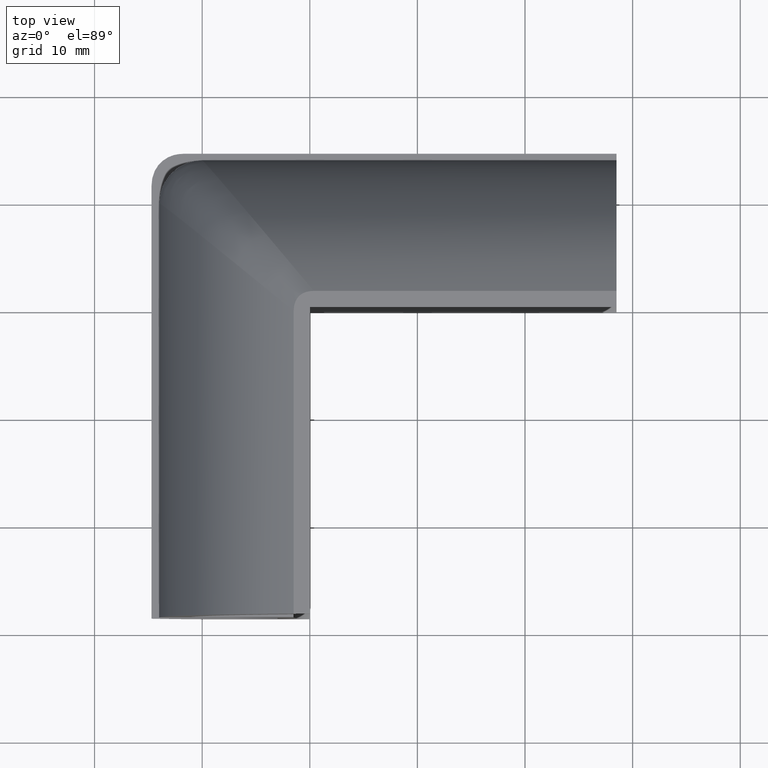
[diagram: clean part render]
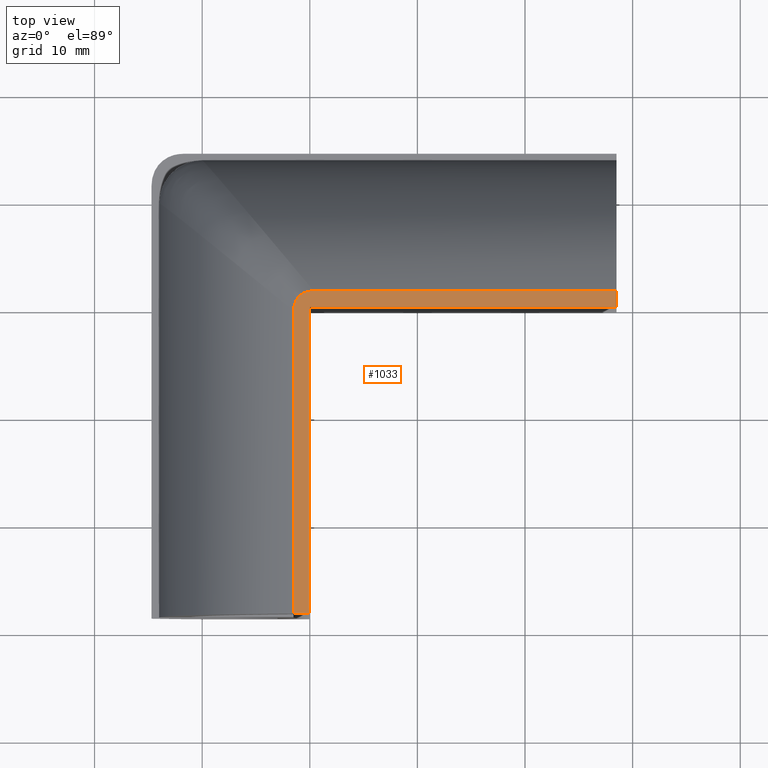
[diagram: same view with one face highlighted and labeled with its STEP entity id]
A machine part, top view. The second image highlights one B-rep face of the part: STEP entity #1033.
In plain terms, the highlighted planar face has unit normal (0, 0, 1).
Its self-contained STEP definition (entity closure, byte-faithful):
#114=CARTESIAN_POINT('',(2.000888E-011,-1.993250E-011,29.766559657295147));
#115=VERTEX_POINT('',#114);
#122=CARTESIAN_POINT('',(2.000888E-011,-28.499999999999858,29.766559657295151));
#123=VERTEX_POINT('',#122);
#124=CARTESIAN_POINT('',(2.000888E-011,-1.993072E-011,29.766559657295147));
#125=DIRECTION('',(0.0,-1.0,0.0));
#126=VECTOR('',#125,28.499999999979920);
#127=LINE('',#124,#126);
#128=EDGE_CURVE('',#115,#123,#127,.T.);
#365=CARTESIAN_POINT('',(-1.500000000000000,-28.499999999999858,29.766559657295151));
#366=VERTEX_POINT('',#365);
#367=CARTESIAN_POINT('',(2.000888E-011,-28.499999999999858,29.766559657295151));
#368=DIRECTION('',(-1.0,0.0,0.0));
#369=VECTOR('',#368,1.500000000020009);
#370=LINE('',#367,#369);
#371=EDGE_CURVE('',#123,#366,#370,.T.);
#504=CARTESIAN_POINT('',(28.500006930995369,-1.985967E-011,29.766559657295147));
#505=VERTEX_POINT('',#504);
#512=CARTESIAN_POINT('',(28.500006930995369,-1.985967E-011,29.766559657295147));
#513=DIRECTION('',(-1.0,0.0,0.0));
#514=VECTOR('',#513,28.500006930975406);
#515=LINE('',#512,#514);
#516=EDGE_CURVE('',#505,#115,#515,.T.);
#741=CARTESIAN_POINT('',(28.500006930995369,1.500000000000149,29.766559657295147));
#742=VERTEX_POINT('',#741);
#750=CARTESIAN_POINT('',(28.500006930995369,-1.985967E-011,29.766559657295147));
#751=DIRECTION('',(0.0,1.0,0.0));
#752=VECTOR('',#751,1.500000000020009);
#753=LINE('',#750,#752);
#754=EDGE_CURVE('',#505,#742,#753,.T.);
#992=CARTESIAN_POINT('',(-1.501000000106956,1.501000000107004,29.766559657295147));
#993=DIRECTION('',(0.0,0.0,1.0));
#994=DIRECTION('',(0.0,-1.0,0.0));
#995=AXIS2_PLACEMENT_3D('',#992,#993,#994);
#996=PLANE('',#995);
#997=ORIENTED_EDGE('',*,*,#516,.F.);
#998=ORIENTED_EDGE('',*,*,#754,.T.);
#999=CARTESIAN_POINT('',(0.372340425531888,1.500000000000121,29.766559657295147));
#1000=VERTEX_POINT('',#999);
#1001=CARTESIAN_POINT('',(28.500006930995369,1.500000000000149,29.766559657295147));
#1002=DIRECTION('',(-1.0,0.0,0.0));
#1003=VECTOR('',#1002,28.127666505463480);
#1004=LINE('',#1001,#1003);
#1005=EDGE_CURVE('',#742,#1000,#1004,.T.);
#1006=ORIENTED_EDGE('',*,*,#1005,.T.);
#1007=CARTESIAN_POINT('',(-1.500000000000000,-0.372340425531776,29.766559657295147));
#1008=VERTEX_POINT('',#1007);
#1009=CARTESIAN_POINT('',(-1.500000000000000,-0.372340425531776,29.766559657295147));
#1010=CARTESIAN_POINT('',(-1.500000000000000,-0.306473714120910,29.766559657295147));
#1011=CARTESIAN_POINT('',(-1.490375540448099,-0.005409303304514,29.766559657295147));
#1012=CARTESIAN_POINT('',(-1.401030175337951,0.443303989279357,29.766559657295147));
#1013=CARTESIAN_POINT('',(-1.150357823886225,0.873205265993501,29.766559657295147));
#1014=CARTESIAN_POINT('',(-0.885121537575515,1.135117943434373,29.766559657295147));
#1015=CARTESIAN_POINT('',(-0.593279026831965,1.315965047505722,29.766559657295147));
#1016=CARTESIAN_POINT('',(-0.212922555001001,1.451663674348522,29.766559657295147));
#1017=CARTESIAN_POINT('',(0.117775853105059,1.495532499761898,29.766559657295147));
#1018=CARTESIAN_POINT('',(0.328855836606976,1.500000000000146,29.766559657295147));
#1019=CARTESIAN_POINT('',(0.372340425531888,1.500000000000147,29.766559657295147));
#1020=B_SPLINE_CURVE_WITH_KNOTS('',3,(#1009,#1010,#1011,#1012,#1013,#1014,#1015,#1016,#1017,#1018,#1019),.UNSPECIFIED.,.F.,.U.,(4,1,1,1,1,1,1,1,4),(0.0,0.197628944364618,0.903624282593580,1.353052268852671,1.674213267828656,2.014709335418163,2.376569553734266,2.879384290570028,3.009838057344644),.UNSPECIFIED.);
#1021=EDGE_CURVE('',#1008,#1000,#1020,.T.);
#1022=ORIENTED_EDGE('',*,*,#1021,.F.);
#1023=CARTESIAN_POINT('',(-1.500000000000000,-0.372340425531775,29.766559657295147));
#1024=DIRECTION('',(0.0,-1.0,0.0));
#1025=VECTOR('',#1024,28.127659574468076);
#1026=LINE('',#1023,#1025);
#1027=EDGE_CURVE('',#1008,#366,#1026,.T.);
#1028=ORIENTED_EDGE('',*,*,#1027,.T.);
#1029=ORIENTED_EDGE('',*,*,#371,.F.);
#1030=ORIENTED_EDGE('',*,*,#128,.F.);
#1031=EDGE_LOOP('',(#997,#998,#1006,#1022,#1028,#1029,#1030));
#1032=FACE_OUTER_BOUND('',#1031,.T.);
#1033=ADVANCED_FACE('',(#1032),#996,.T.);